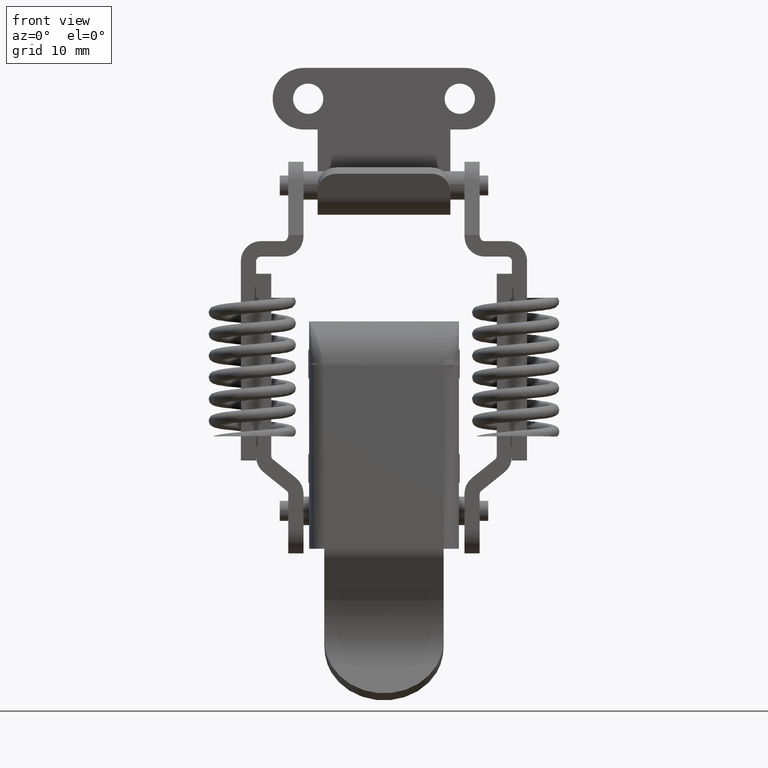
[diagram: clean part render]
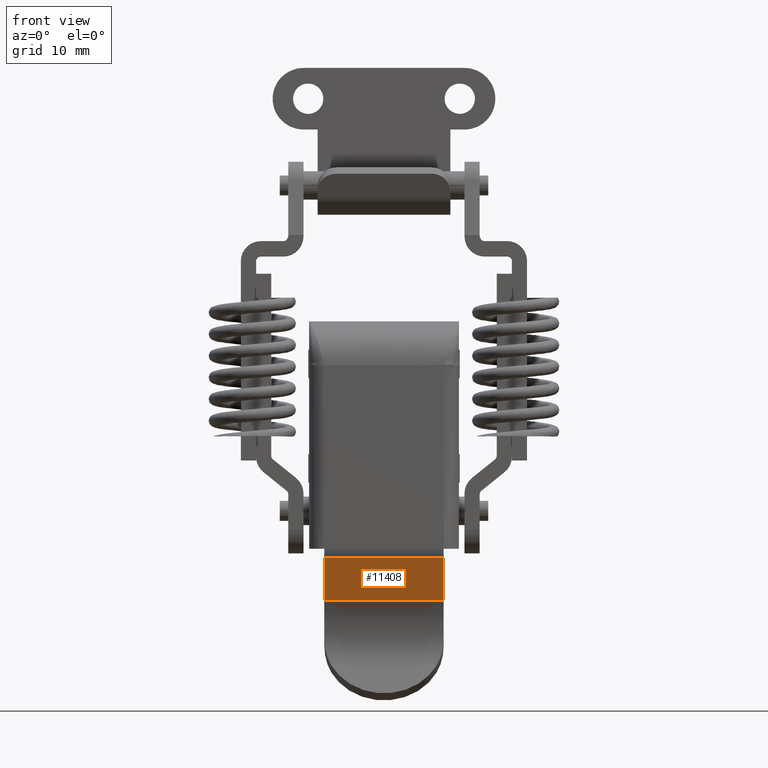
[diagram: same view with one face highlighted and labeled with its STEP entity id]
A machine part, front view. The second image highlights one B-rep face of the part: STEP entity #11408.
In plain terms, the highlighted face is a freeform B-spline surface patch.
Its self-contained STEP definition (entity closure, byte-faithful):
#10995=CARTESIAN_POINT('',(-8.448576733048821,6.300000000000000,-39.274331705415747));
#10996=VERTEX_POINT('',#10995);
#11012=CARTESIAN_POINT('',(-8.448576733048821,-6.300000000000000,-39.274331705415747));
#11013=VERTEX_POINT('',#11012);
#11014=CARTESIAN_POINT('',(-8.448576733048821,-6.300000000000000,-39.274331705415747));
#11015=CARTESIAN_POINT('',(-8.448576733048821,6.300000000000000,-39.274331705415747));
#11016=QUASI_UNIFORM_CURVE('',1,(#11014,#11015),.UNSPECIFIED.,.F.,.U.);
#11017=EDGE_CURVE('',#11013,#10996,#11016,.T.);
#11192=CARTESIAN_POINT('',(-5.776528829735029,-6.300000000000000,-43.783994916380202));
#11193=VERTEX_POINT('',#11192);
#11194=CARTESIAN_POINT('',(-8.448576733048821,-6.300000000000000,-39.274331705415747));
#11195=CARTESIAN_POINT('',(-5.776528829735029,-6.300000000000000,-43.783994916380202));
#11196=QUASI_UNIFORM_CURVE('',1,(#11194,#11195),.UNSPECIFIED.,.F.,.U.);
#11197=EDGE_CURVE('',#11013,#11193,#11196,.T.);
#11247=CARTESIAN_POINT('',(-5.776528829735029,6.300000000000000,-43.783994916380202));
#11248=VERTEX_POINT('',#11247);
#11249=CARTESIAN_POINT('',(-8.448576733048821,6.300000000000000,-39.274331705415747));
#11250=CARTESIAN_POINT('',(-5.776528829735029,6.300000000000000,-43.783994916380202));
#11251=QUASI_UNIFORM_CURVE('',1,(#11249,#11250),.UNSPECIFIED.,.F.,.U.);
#11252=EDGE_CURVE('',#10996,#11248,#11251,.T.);
#11389=CARTESIAN_POINT('',(-5.776528829735029,6.300000000000000,-43.783994916380202));
#11390=CARTESIAN_POINT('',(-5.776528829735029,-6.300000000000000,-43.783994916380202));
#11391=QUASI_UNIFORM_CURVE('',1,(#11389,#11390),.UNSPECIFIED.,.F.,.U.);
#11392=EDGE_CURVE('',#11248,#11193,#11391,.T.);
#11397=CARTESIAN_POINT('',(-5.643059226376260,-6.929370212138326,-44.009253961812263));
#11398=CARTESIAN_POINT('',(-8.582046431967537,-6.929370212138326,-39.049072498705591));
#11399=CARTESIAN_POINT('',(-5.643059226376260,6.929370324791104,-44.009253961812263));
#11400=CARTESIAN_POINT('',(-8.582046431967536,6.929370324791104,-39.049072498705591));
#11401=B_SPLINE_SURFACE_WITH_KNOTS('',1,1,((#11397,#11399),(#11398,#11400)),.UNSPECIFIED.,.F.,.F.,.U.,(2,2),(2,2),(0.0,5.765504829724477),(0.0,13.858740536929430),.UNSPECIFIED.);
#11402=ORIENTED_EDGE('',*,*,#11197,.F.);
#11403=ORIENTED_EDGE('',*,*,#11017,.T.);
#11404=ORIENTED_EDGE('',*,*,#11252,.T.);
#11405=ORIENTED_EDGE('',*,*,#11392,.T.);
#11406=EDGE_LOOP('',(#11402,#11403,#11404,#11405));
#11407=FACE_OUTER_BOUND('',#11406,.T.);
#11408=ADVANCED_FACE('',(#11407),#11401,.T.);